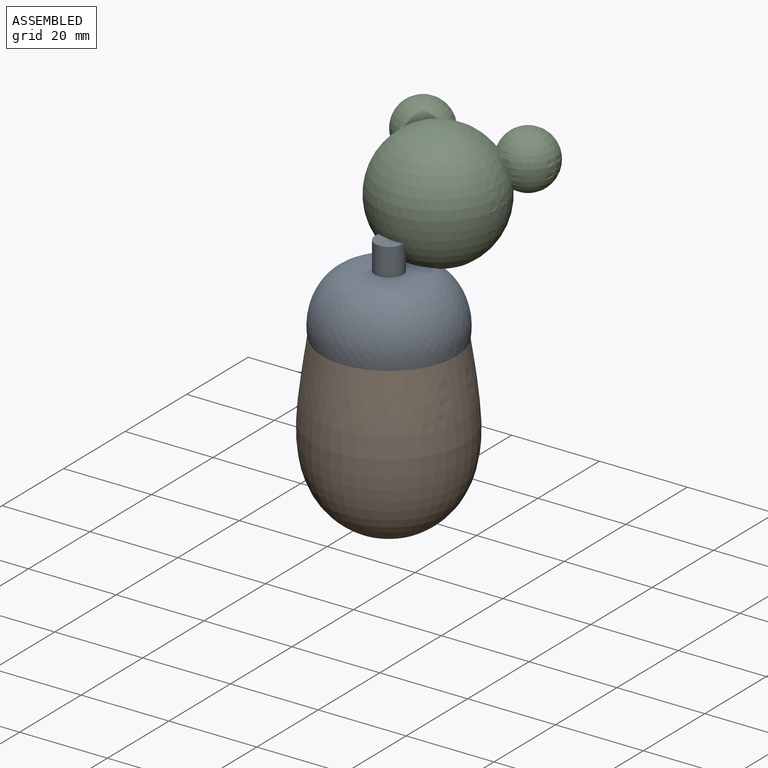
[diagram: assembled view]
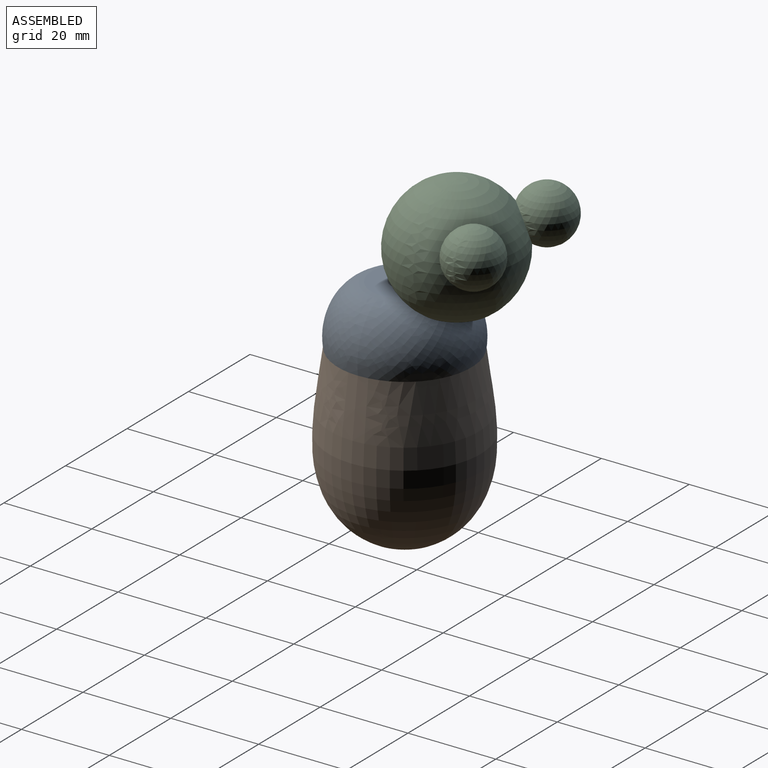
[diagram: assembled view, second angle]
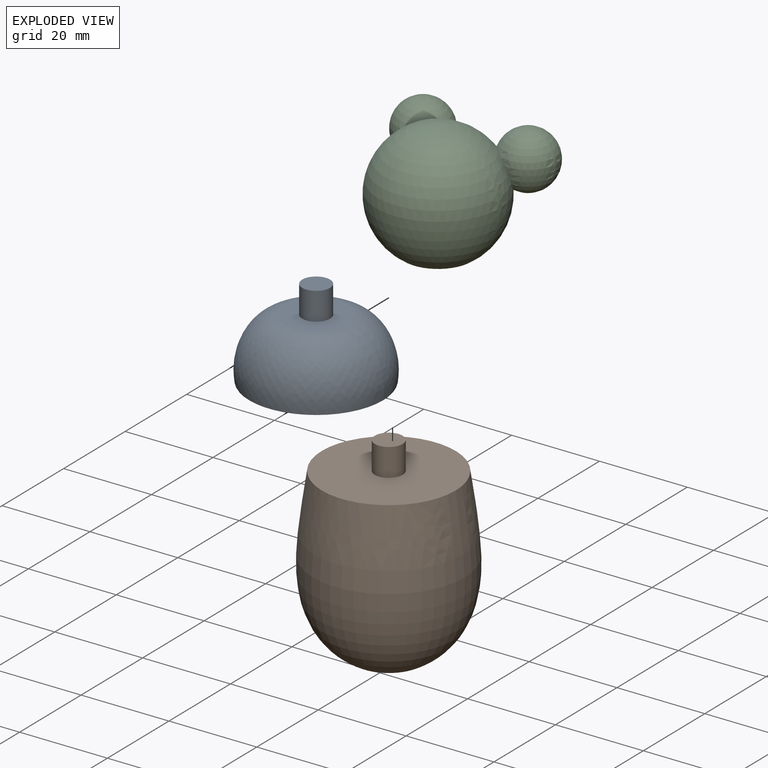
[diagram: exploded view]
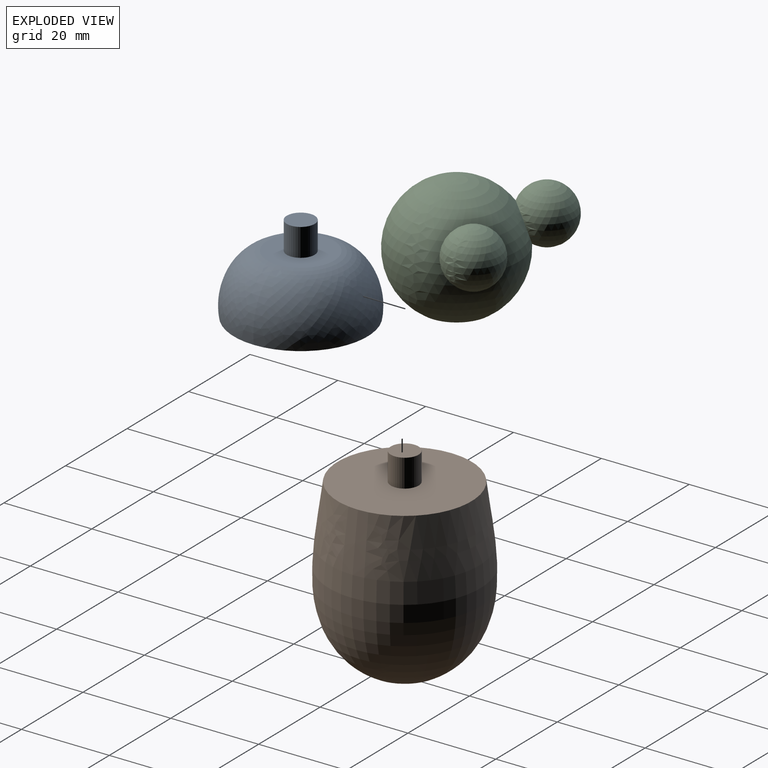
[diagram: exploded view, second angle]
ASSEMBLY  parts=3 mates=2
PART A: 7 faces, bbox 30.8x30.8x19.9 mm
  f0: plane 15.24x15.24mm, normal (0,0,1), area 150.7mm2, adj f2,f5
  f1: plane 30.48x30.48mm, normal (0,0,-1), area 691.3mm2, adj f2,f3
  f2: revolved ~30.83x30.83mm, area 1415.3mm2, adj f0,f1
  f3: cylinder r=3.49mm len=6.99mm, axis (0,0,-1), area 153.3mm2, adj f1,f4
  f4: plane 6.99x6.99mm, normal (0,0,-1), area 38.3mm2, adj f3
  f5: cylinder r=3.17mm len=6.35mm, axis (0,0,-1), area 126.7mm2, adj f0,f6
  f6: plane 6.35x6.35mm, normal (0,0,1), area 31.7mm2, adj f5
PART B: 5 faces, bbox 34.6x34.6x44.5 mm
  f0: plane 30.48x30.48mm, normal (0,0,1), area 698mm2, adj f2,f3
  f1: plane 15.24x15.24mm, normal (0,0,-1), area 182.4mm2, adj f2
  f2: revolved ~38.1x34.61mm, area 3998.3mm2, adj f0,f1
  f3: cylinder r=3.17mm len=6.35mm, axis (0,0,-1), area 126.7mm2, adj f0,f4
  f4: plane 6.35x6.35mm, normal (0,0,1), area 31.7mm2, adj f3
PART C: 6 faces, bbox 36.6x32.6x26 mm
  f0: sphere r=14.11mm, area 2178.9mm2, adj f1,f4,f5
  f1: plane 15.24x15.24mm, normal (0,0,-1), area 144.1mm2, adj f0,f2
  f2: cylinder r=3.49mm len=6.99mm, axis (0,0,-1), area 153.3mm2, adj f1,f3
  f3: plane 6.99x6.99mm, normal (0,0,-1), area 38.3mm2, adj f2
  f4: sphere r=6.35mm, area 437mm2, adj f0
  f5: sphere r=6.35mm, area 437mm2, adj f0
PLACE A t=(-1.07,4.54,43.48)mm
PLACE B t=(-1.1,4.49,43.48)mm
PLACE C t=(0.88,17.7,69.42)mm
MATE planar A.f5 <-> B.f3  axis (0,0,-1) through (-1.07,4.54,43.48)mm
MATE planar A.f5 <-> C.f2  axis (0,0,1) through (-1.07,4.54,63.41)mm
